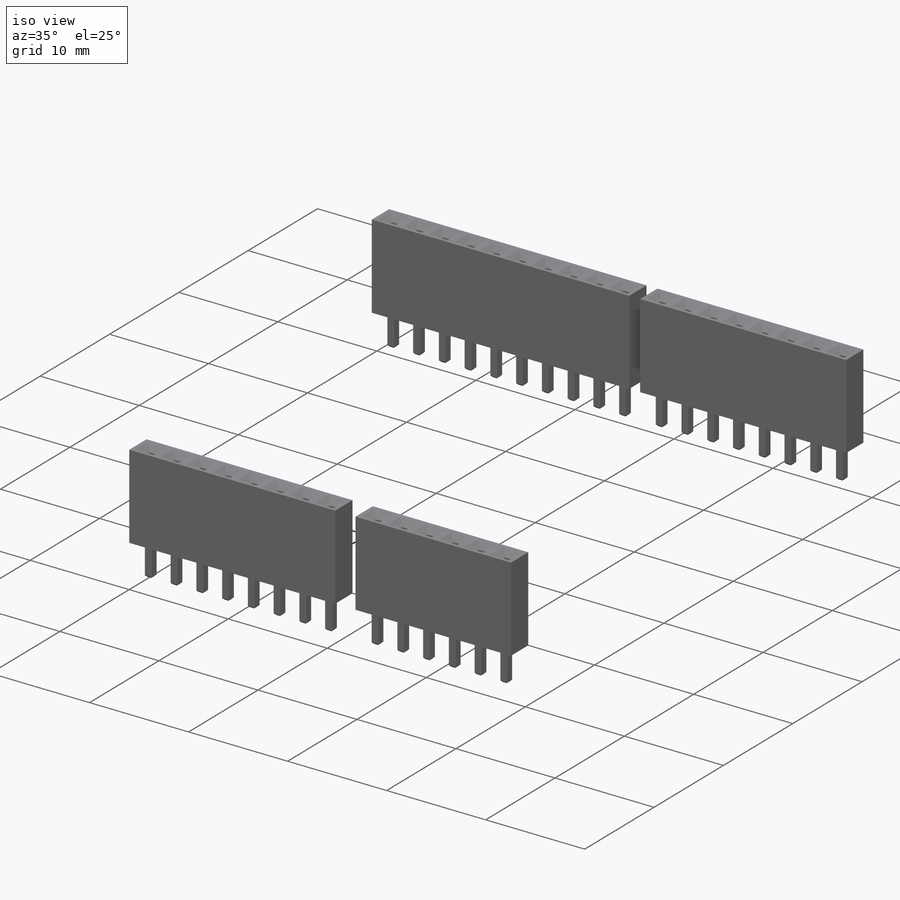
[diagram: iso view]
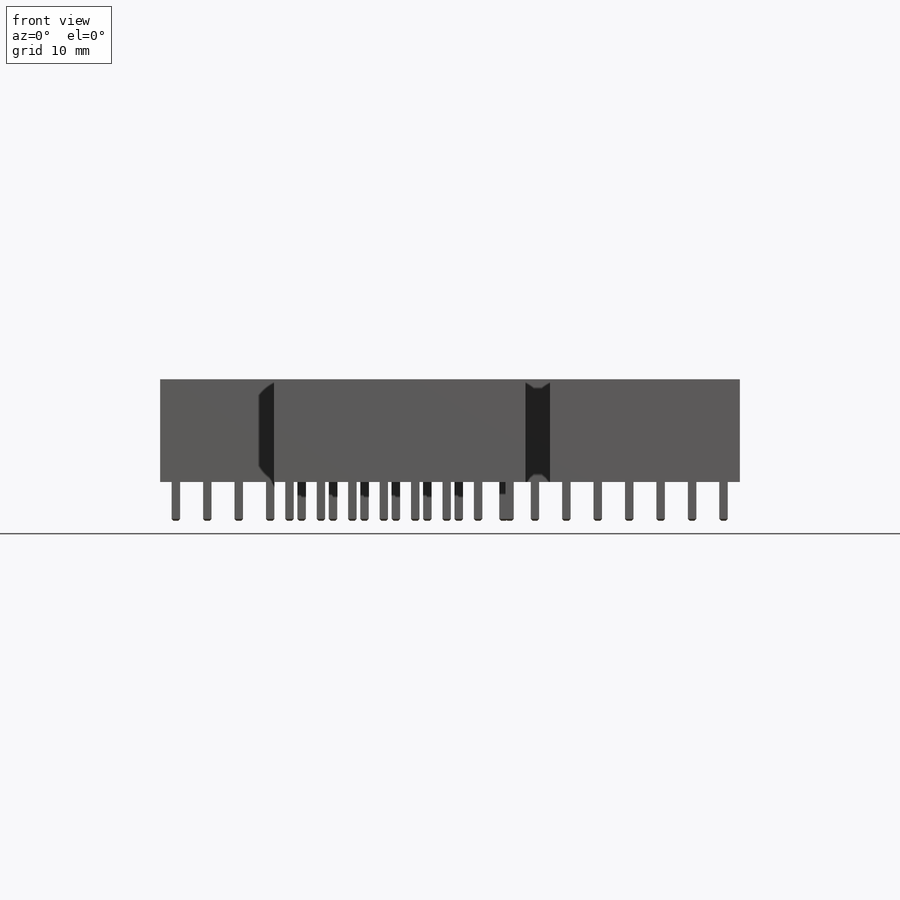
[diagram: front view]
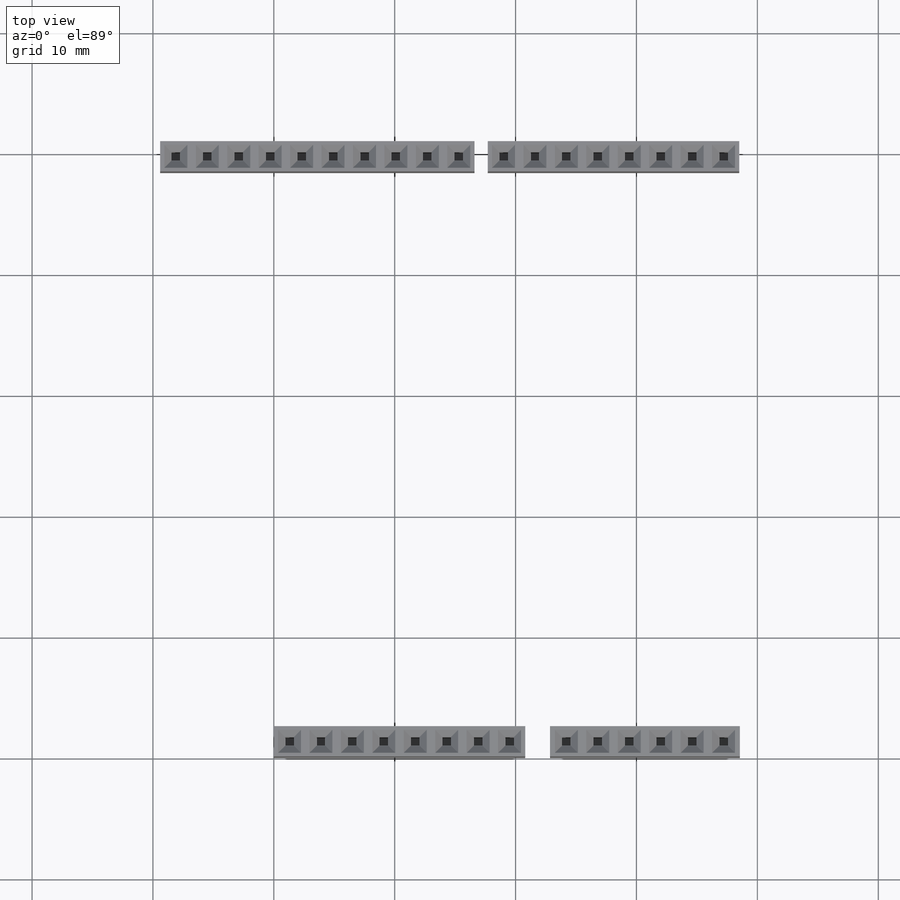
[diagram: top view]
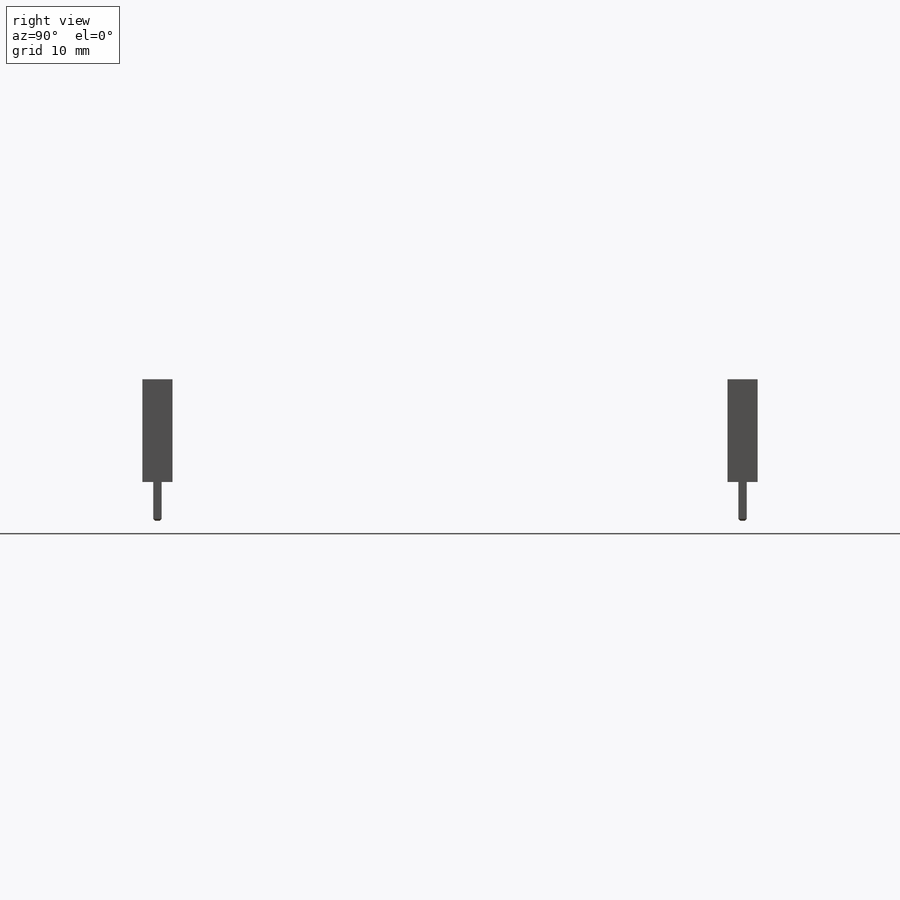
[diagram: right view]
SOLIDWORKS PART (.sldprt)
format: sldprt  version: not decoded by parser v0  size: 1,162,752 bytes
history: native  units: mm
features: chamfer x8, plane x3, sketch x3, extrude x2, material x1, cut_extrude x1 (+10 scaffold rows collapsed)
feature tree (28):
  scaffold x10  (default folders/planes/origin — collapsed)
  material  "Material <not specified>"
  plane  "Plan de face"
  plane  "Plan de dessus"
  plane  "Plan de droite"
  sketch  "Esquisse1"  dims[c1.D1=20.8mm c1.D2=2.5mm c1.D3=15.7mm c1.D4=2.5mm c1.D5=2.05mm c1.D6=45.9mm c1.D7=20.8mm c1.D8=2.5mm c1.D9=2.5mm c1.D10=1.1mm c1.D11=26.0mm c1.D12=~2.35399mm c2.D4=2.5mm c2.D12=0.05mm]
  extrude  "Boss.-Extru.1"  Depth=8.5mm
  sketch  "Esquisse2"  dims[c1.D1=2.6mm c1.D2=0.7mm c1.D6=2.6mm c1.D7=0.7mm c1.D9=2.6mm c1.D10=0.7mm c1.D12=0.95mm c1.D13=0.95mm c1.D14=0.7mm c2.D12=1.35mm c2.D13=0.7mm c2.D3=8.0 c2.D4=2.0 c2.D5=6.0 c2.D8=10.0 c2.D11=8.0]
  extrude  "Boss.-Extru.2"  Depth=3.2mm
  chamfer  "Chanfrein1"  Distance=0.15mm Angle=45deg
  chamfer  "Chanfrein2"  Distance=0.15mm Angle=45deg
  chamfer  "Chanfrein3"  Distance=0.15mm Angle=45deg
  chamfer  "Chanfrein4"  Distance=0.15mm Angle=45deg
  sketch  "Esquisse3"  dims[D1=0.0mm D2=0.0mm D3=0.0mm D4=0.0mm D5=0.0mm D6=0.0mm D7=0.0mm D8=0.0mm D9=0.0mm D10=0.0mm D11=0.0mm D12=0.0mm D13=0.0mm D14=0.0mm D15=0.0mm D16=0.0mm D17=0.0mm D18=0.0mm D19=0.0mm D20=0.0mm D21=0.0mm D22=0.0mm D23=0.0mm D24=0.0mm D25=0.0mm D26=0.0mm D27=0.0mm D28=0.0mm D29=0.0mm D30=0.0mm D31=0.0mm D32=0.0mm]
  cut_extrude  "Enlèv. mat.-Extru.1"  Depth=7mm
  chamfer  "Chanfrein5"  Distance=0.6mm Angle=45deg
  chamfer  "Chanfrein6"  Distance=0.6mm Angle=45deg
  chamfer  "Chanfrein7"  Distance=0.6mm Angle=45deg
  chamfer  "Chanfrein8"  Distance=0.6mm Angle=45deg
decode coverage: 14 of 14 modeling features carry decoded parameters
note: ~ marks probable driven/reference dimensions
note: suppression state not decoded; provenance and decode notes live in map.json
